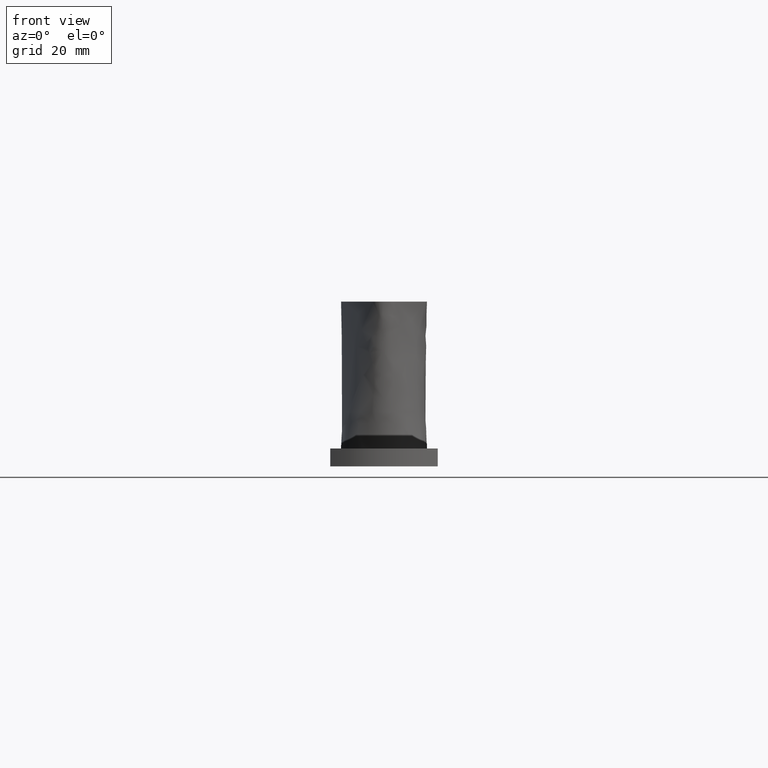
[diagram: clean part render]
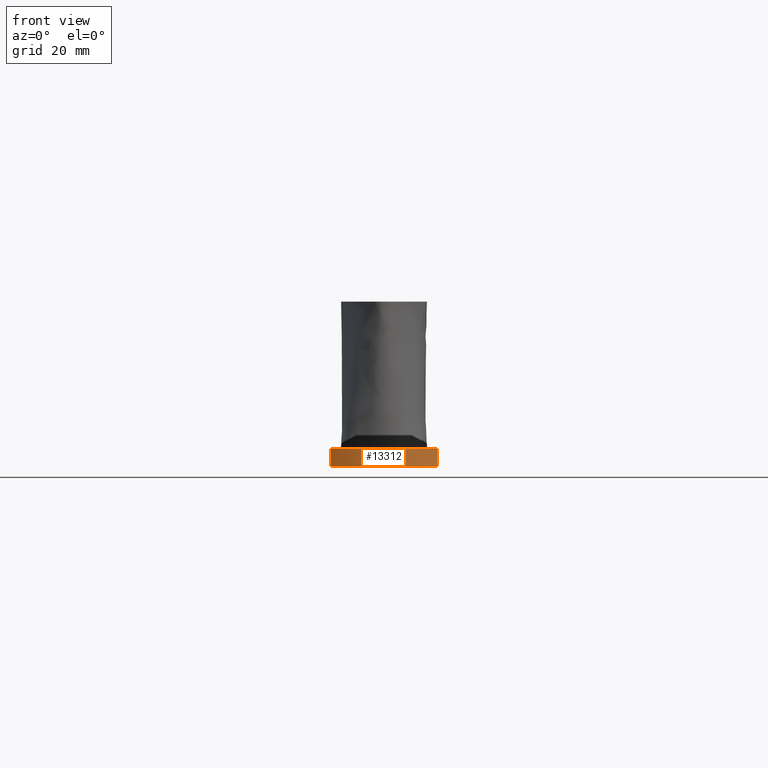
[diagram: same view with one face highlighted and labeled with its STEP entity id]
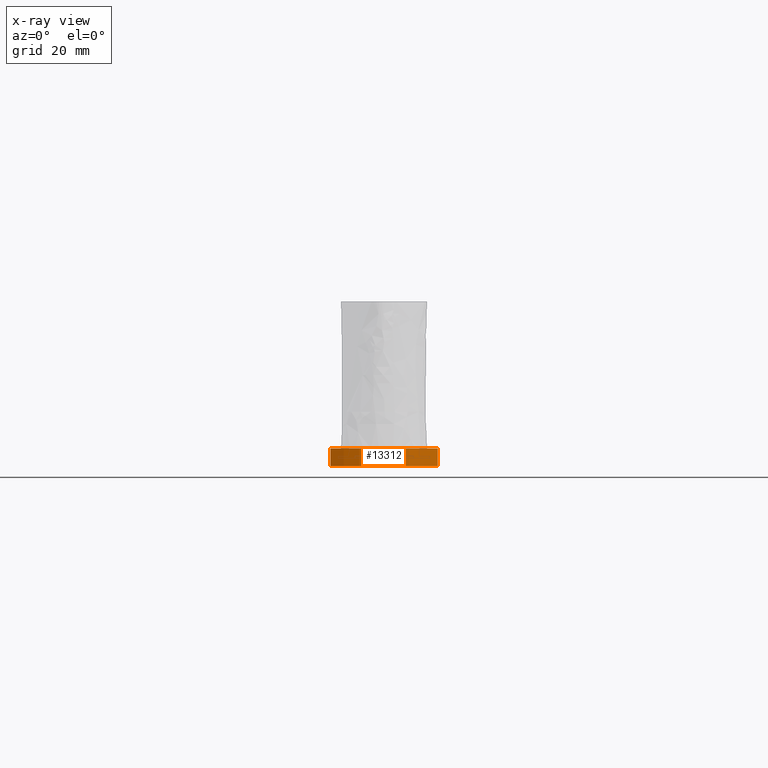
[diagram: x-ray of the same camera — body ghosted, the highlighted face saturated]
A machine part, front view. The second image highlights one B-rep face of the part: STEP entity #13312.
The next image is the same camera in x-ray: the body ghosted, the highlighted face saturated — about 0% of this face is hidden behind the body in this view.
In plain terms, the highlighted cylindrical surface (partial cylindrical patch) has radius 21.75 mm, axis along (-0, -0, -1).
Its self-contained STEP definition (entity closure, byte-faithful):
#169 = FACE_OUTER_BOUND ( 'NONE', #3602, .T. ) ;
#614 = DIRECTION ( 'NONE',  ( 1.000000000000000000, 0.000000000000000000, 0.000000000000000000 ) ) ;
#721 = CARTESIAN_POINT ( 'NONE',  ( 15.00000000000000533, -92.50000000000001421, -2.500000000000000000 ) ) ;
#888 = ORIENTED_EDGE ( 'NONE', *, *, #14732, .F. ) ;
#1544 = DIRECTION ( 'NONE',  ( 1.000000000000000000, 0.000000000000000000, 0.000000000000000000 ) ) ;
#2792 = AXIS2_PLACEMENT_3D ( 'NONE', #11482, #12917, #1544 ) ;
#2814 = DIRECTION ( 'NONE',  ( -0.000000000000000000, -0.000000000000000000, -1.000000000000000000 ) ) ;
#2842 = CYLINDRICAL_SURFACE ( 'NONE', #11940, 21.74999999999999289 ) ;
#3342 = DIRECTION ( 'NONE',  ( -0.000000000000000000, -0.000000000000000000, -1.000000000000000000 ) ) ;
#3547 = DIRECTION ( 'NONE',  ( 0.000000000000000000, 0.000000000000000000, 1.000000000000000000 ) ) ;
#3602 = EDGE_LOOP ( 'NONE', ( #8865, #888, #13072, #9247 ) ) ;
#4272 = CARTESIAN_POINT ( 'NONE',  ( 15.00000000000000533, -92.50000000000001421, 2.500000000000000000 ) ) ;
#4443 = VECTOR ( 'NONE', #3342, 1000.000000000000000 ) ;
#4670 = LINE ( 'NONE', #12052, #4443 ) ;
#4733 = AXIS2_PLACEMENT_3D ( 'NONE', #12132, #3547, #614 ) ;
#4797 = CARTESIAN_POINT ( 'NONE',  ( -14.99999999999998224, -92.50000000000000000, -2.500000000000000000 ) ) ;
#5505 = LINE ( 'NONE', #17171, #11321 ) ;
#5517 = CARTESIAN_POINT ( 'NONE',  ( -14.99999999999998224, -92.50000000000000000, 2.500000000000000000 ) ) ;
#5834 = VERTEX_POINT ( 'NONE', #5517 ) ;
#6319 = VERTEX_POINT ( 'NONE', #721 ) ;
#6841 = EDGE_CURVE ( 'NONE', #5834, #13430, #9414, .T. ) ;
#8080 = CARTESIAN_POINT ( 'NONE',  ( 1.409874627518390129E-14, -76.75000000000001421, 2.500000000000000000 ) ) ;
#8865 = ORIENTED_EDGE ( 'NONE', *, *, #11725, .T. ) ;
#9247 = ORIENTED_EDGE ( 'NONE', *, *, #9566, .T. ) ;
#9414 = CIRCLE ( 'NONE', #2792, 21.74999999999999289 ) ;
#9480 = DIRECTION ( 'NONE',  ( -0.000000000000000000, -0.000000000000000000, -1.000000000000000000 ) ) ;
#9566 = EDGE_CURVE ( 'NONE', #5834, #12607, #4670, .T. ) ;
#10254 = CIRCLE ( 'NONE', #4733, 21.74999999999999289 ) ;
#11321 = VECTOR ( 'NONE', #2814, 1000.000000000000000 ) ;
#11482 = CARTESIAN_POINT ( 'NONE',  ( 1.409874627518390129E-14, -76.75000000000001421, 2.500000000000000000 ) ) ;
#11725 = EDGE_CURVE ( 'NONE', #12607, #6319, #10254, .T. ) ;
#11940 = AXIS2_PLACEMENT_3D ( 'NONE', #8080, #9480, #18379 ) ;
#12052 = CARTESIAN_POINT ( 'NONE',  ( -14.99999999999998224, -92.50000000000000000, 2.500000000000000000 ) ) ;
#12132 = CARTESIAN_POINT ( 'NONE',  ( 1.409874627518390129E-14, -76.75000000000001421, -2.500000000000000000 ) ) ;
#12607 = VERTEX_POINT ( 'NONE', #4797 ) ;
#12917 = DIRECTION ( 'NONE',  ( 0.000000000000000000, 0.000000000000000000, 1.000000000000000000 ) ) ;
#13072 = ORIENTED_EDGE ( 'NONE', *, *, #6841, .F. ) ;
#13312 = ADVANCED_FACE ( 'NONE', ( #169 ), #2842, .T. ) ;
#13430 = VERTEX_POINT ( 'NONE', #4272 ) ;
#14732 = EDGE_CURVE ( 'NONE', #13430, #6319, #5505, .T. ) ;
#17171 = CARTESIAN_POINT ( 'NONE',  ( 15.00000000000000533, -92.50000000000001421, 2.500000000000000000 ) ) ;
#18379 = DIRECTION ( 'NONE',  ( -1.000000000000000000, 0.000000000000000000, 0.000000000000000000 ) ) ;